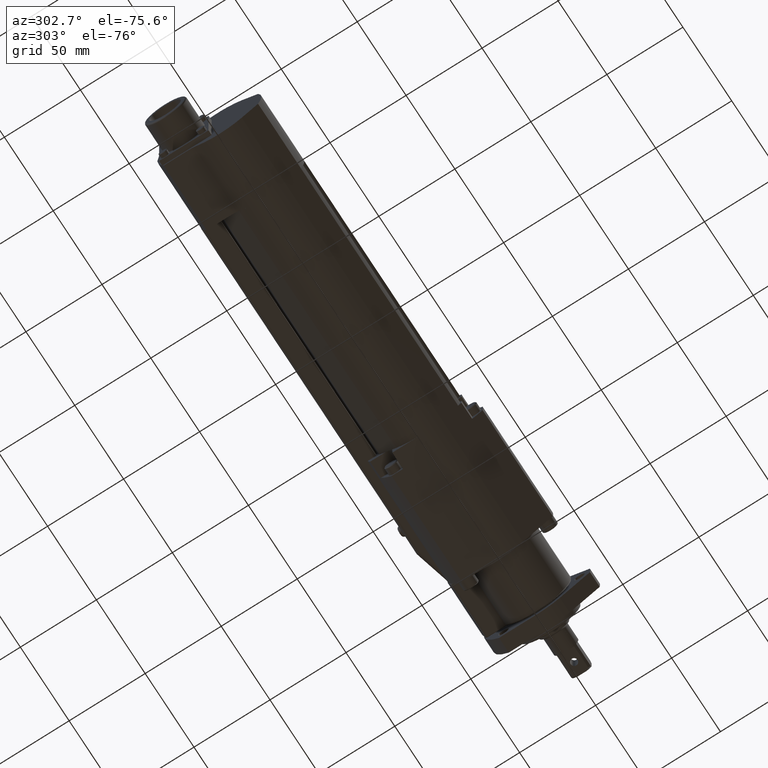
[diagram: clean part render]
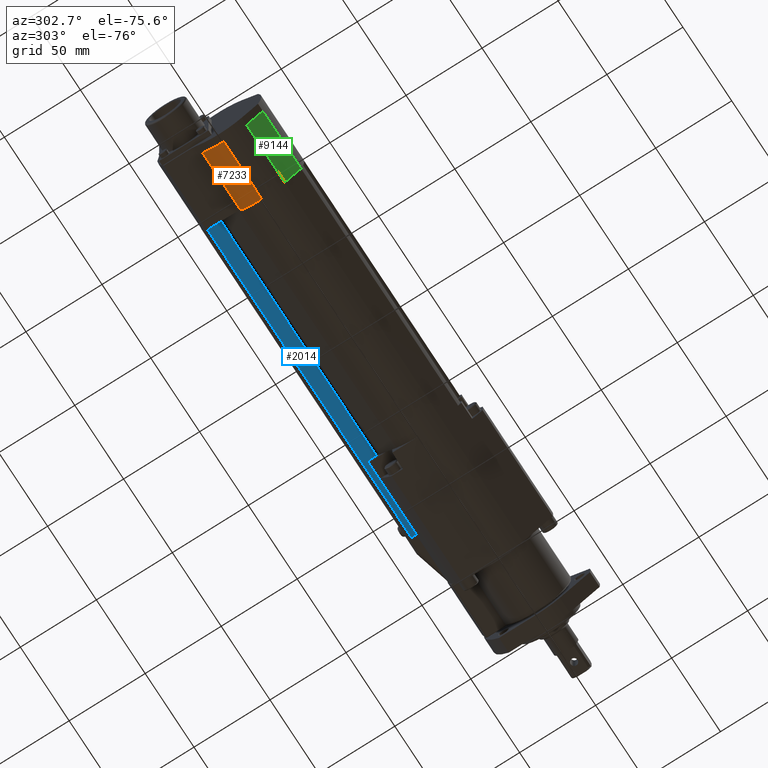
[diagram: same view with three faces highlighted in distinct colors, each labeled with its STEP entity id]
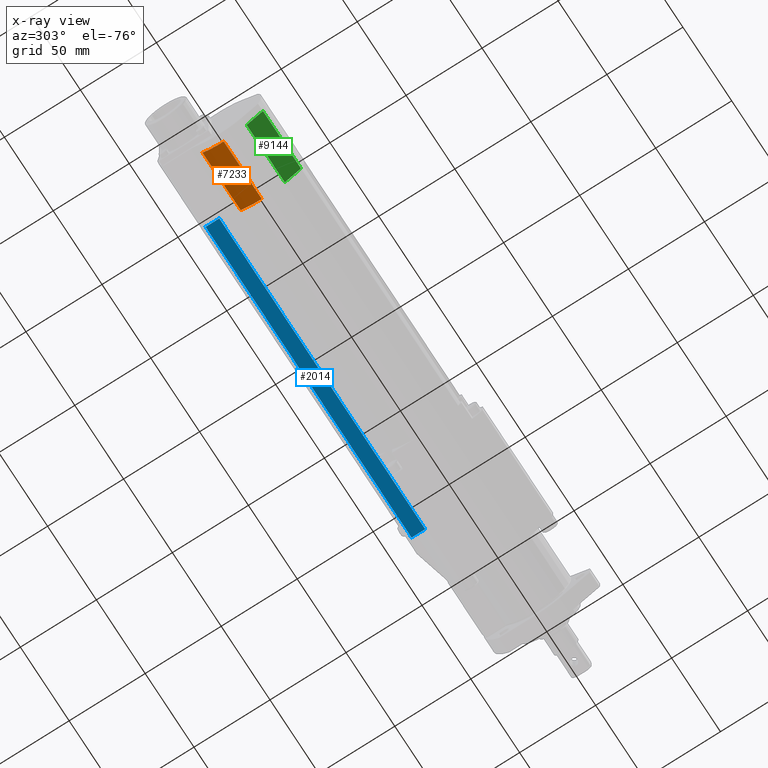
[diagram: x-ray of the same camera — body ghosted, the three highlighted faces saturated]
A machine part, auxiliary view with three faces highlighted in distinct colors.
The next image is the same camera in x-ray (body ghosted, the three faces saturated) — at least one of them is partly hidden behind the body in this view.
Their STEP definitions:

[orange] entity #7233 — the highlighted cylindrical surface (partial cylindrical patch) has radius 24.5 mm, axis along (1, -0, -0).
#354 = CARTESIAN_POINT ( 'NONE',  ( -331.0000000000000000, 13.95534960860682200, -20.13698630136986300 ) ) ;
#899 = EDGE_CURVE ( 'NONE', #1862, #3850, #1160, .T. ) ;
#931 = CIRCLE ( 'NONE', #4752, 24.50000000000000000 ) ;
#961 = EDGE_LOOP ( 'NONE', ( #5547, #7835, #9008, #7910 ) ) ;
#1142 = CARTESIAN_POINT ( 'NONE',  ( -331.0000000000000000, 0.0000000000000000000, 0.0000000000000000000 ) ) ;
#1160 = LINE ( 'NONE', #5411, #2376 ) ;
#1361 = LINE ( 'NONE', #354, #3248 ) ;
#1818 = CYLINDRICAL_SURFACE ( 'NONE', #7460, 24.50000000000000000 ) ;
#1862 = VERTEX_POINT ( 'NONE', #8710 ) ;
#1865 = DIRECTION ( 'NONE',  ( 0.0000000000000000000, 0.0000000000000000000, 1.000000000000000000 ) ) ;
#2308 = DIRECTION ( 'NONE',  ( 1.000000000000000000, -0.0000000000000000000, -0.0000000000000000000 ) ) ;
#2376 = VECTOR ( 'NONE', #7579, 1000.000000000000000 ) ;
#3021 = CARTESIAN_POINT ( 'NONE',  ( -331.0000000000000000, 0.0000000000000000000, 0.0000000000000000000 ) ) ;
#3248 = VECTOR ( 'NONE', #8946, 1000.000000000000000 ) ;
#3687 = CARTESIAN_POINT ( 'NONE',  ( -292.0000000000000600, 0.0000000000000000000, 0.0000000000000000000 ) ) ;
#3850 = VERTEX_POINT ( 'NONE', #9018 ) ;
#4412 = DIRECTION ( 'NONE',  ( 0.0000000000000000000, 0.0000000000000000000, 1.000000000000000000 ) ) ;
#4457 = CARTESIAN_POINT ( 'NONE',  ( -331.0000000000000000, 13.95534960860682200, -20.13698630136986300 ) ) ;
#4752 = AXIS2_PLACEMENT_3D ( 'NONE', #3687, #8730, #4412 ) ;
#5039 = AXIS2_PLACEMENT_3D ( 'NONE', #1142, #6161, #1865 ) ;
#5411 = CARTESIAN_POINT ( 'NONE',  ( -331.0000000000000000, 0.0000000000000000000, -24.50000000000000000 ) ) ;
#5547 = ORIENTED_EDGE ( 'NONE', *, *, #899, .F. ) ;
#5853 = FACE_OUTER_BOUND ( 'NONE', #961, .T. ) ;
#6161 = DIRECTION ( 'NONE',  ( -1.000000000000000000, 0.0000000000000000000, 0.0000000000000000000 ) ) ;
#6312 = CIRCLE ( 'NONE', #5039, 24.50000000000000000 ) ;
#6538 = VERTEX_POINT ( 'NONE', #4457 ) ;
#6678 = VERTEX_POINT ( 'NONE', #6950 ) ;
#6945 = EDGE_CURVE ( 'NONE', #6678, #3850, #931, .T. ) ;
#6950 = CARTESIAN_POINT ( 'NONE',  ( -292.0000000000000600, 13.95534960860682200, -20.13698630136986300 ) ) ;
#7167 = EDGE_CURVE ( 'NONE', #6538, #1862, #6312, .T. ) ;
#7233 = ADVANCED_FACE ( 'NONE', ( #5853 ), #1818, .T. ) ;
#7460 = AXIS2_PLACEMENT_3D ( 'NONE', #3021, #2308, #8057 ) ;
#7579 = DIRECTION ( 'NONE',  ( 1.000000000000000000, -0.0000000000000000000, -0.0000000000000000000 ) ) ;
#7780 = EDGE_CURVE ( 'NONE', #6538, #6678, #1361, .T. ) ;
#7835 = ORIENTED_EDGE ( 'NONE', *, *, #7167, .F. ) ;
#7910 = ORIENTED_EDGE ( 'NONE', *, *, #6945, .T. ) ;
#8057 = DIRECTION ( 'NONE',  ( 0.0000000000000000000, 0.0000000000000000000, -1.000000000000000000 ) ) ;
#8710 = CARTESIAN_POINT ( 'NONE',  ( -331.0000000000000000, 0.0000000000000000000, -24.50000000000000000 ) ) ;
#8730 = DIRECTION ( 'NONE',  ( -1.000000000000000000, 0.0000000000000000000, 0.0000000000000000000 ) ) ;
#8946 = DIRECTION ( 'NONE',  ( 1.000000000000000000, -0.0000000000000000000, -0.0000000000000000000 ) ) ;
#9008 = ORIENTED_EDGE ( 'NONE', *, *, #7780, .T. ) ;
#9018 = CARTESIAN_POINT ( 'NONE',  ( -292.0000000000000600, 0.0000000000000000000, -24.50000000000000000 ) ) ;

[blue] entity #2014 — the highlighted planar face has unit normal (0, 0, 1).
#84 = AXIS2_PLACEMENT_3D ( 'NONE', #8895, #6755, #2444 ) ;
#263 = LINE ( 'NONE', #7702, #1492 ) ;
#529 = ORIENTED_EDGE ( 'NONE', *, *, #1715, .F. ) ;
#582 = ORIENTED_EDGE ( 'NONE', *, *, #7362, .T. ) ;
#995 = EDGE_CURVE ( 'NONE', #8562, #2224, #263, .T. ) ;
#1298 = VERTEX_POINT ( 'NONE', #1770 ) ;
#1492 = VECTOR ( 'NONE', #4105, 1000.000000000000000 ) ;
#1699 = CARTESIAN_POINT ( 'NONE',  ( -292.0000000000000600, 37.00000000000024900, -9.000000000000000000 ) ) ;
#1715 = EDGE_CURVE ( 'NONE', #3745, #8562, #7294, .T. ) ;
#1745 = PLANE ( 'NONE',  #84 ) ;
#1770 = CARTESIAN_POINT ( 'NONE',  ( -81.00000000000000000, 37.00000000000000700, -9.000000000000000000 ) ) ;
#1787 = CARTESIAN_POINT ( 'NONE',  ( -292.0000000000000600, 37.00000000000027700, -9.000000000000000000 ) ) ;
#2014 = ADVANCED_FACE ( 'NONE', ( #6516 ), #1745, .F. ) ;
#2116 = CARTESIAN_POINT ( 'NONE',  ( -81.00000000000000000, 37.00000000000000700, -9.000000000000000000 ) ) ;
#2224 = VERTEX_POINT ( 'NONE', #5647 ) ;
#2303 = EDGE_CURVE ( 'NONE', #1298, #2224, #3007, .T. ) ;
#2444 = DIRECTION ( 'NONE',  ( 1.000000000000000000, 0.0000000000000000000, -0.0000000000000000000 ) ) ;
#2781 = VECTOR ( 'NONE', #6427, 1000.000000000000000 ) ;
#3007 = LINE ( 'NONE', #2116, #2781 ) ;
#3028 = LINE ( 'NONE', #3157, #6633 ) ;
#3157 = CARTESIAN_POINT ( 'NONE',  ( -313.6333076527839700, 37.00000000000027700, -9.000000000000000000 ) ) ;
#3745 = VERTEX_POINT ( 'NONE', #1699 ) ;
#4105 = DIRECTION ( 'NONE',  ( 1.000000000000000000, -1.156482317317871500E-015, -0.0000000000000000000 ) ) ;
#4107 = EDGE_LOOP ( 'NONE', ( #529, #582, #4767, #4901 ) ) ;
#4662 = DIRECTION ( 'NONE',  ( 0.0000000000000000000, -1.000000000000000000, 0.0000000000000000000 ) ) ;
#4767 = ORIENTED_EDGE ( 'NONE', *, *, #2303, .T. ) ;
#4901 = ORIENTED_EDGE ( 'NONE', *, *, #995, .F. ) ;
#5647 = CARTESIAN_POINT ( 'NONE',  ( -81.00000000000001400, 28.00000000000000000, -9.000000000000000000 ) ) ;
#5934 = CARTESIAN_POINT ( 'NONE',  ( -292.0000000000000600, 28.00000000000024900, -9.000000000000000000 ) ) ;
#6427 = DIRECTION ( 'NONE',  ( -1.541976423090494400E-015, -1.000000000000000000, 0.0000000000000000000 ) ) ;
#6516 = FACE_OUTER_BOUND ( 'NONE', #4107, .T. ) ;
#6633 = VECTOR ( 'NONE', #8184, 1000.000000000000000 ) ;
#6755 = DIRECTION ( 'NONE',  ( 0.0000000000000000000, 0.0000000000000000000, 1.000000000000000000 ) ) ;
#7294 = LINE ( 'NONE', #1787, #9001 ) ;
#7362 = EDGE_CURVE ( 'NONE', #3745, #1298, #3028, .T. ) ;
#7702 = CARTESIAN_POINT ( 'NONE',  ( -313.6333076527839700, 28.00000000000027000, -9.000000000000000000 ) ) ;
#8184 = DIRECTION ( 'NONE',  ( 1.000000000000000000, -1.156482317317871500E-015, -0.0000000000000000000 ) ) ;
#8562 = VERTEX_POINT ( 'NONE', #5934 ) ;
#8895 = CARTESIAN_POINT ( 'NONE',  ( -313.6333076527839700, 37.00000000000027700, -9.000000000000000000 ) ) ;
#9001 = VECTOR ( 'NONE', #4662, 1000.000000000000000 ) ;

[green] entity #9144 — the highlighted planar face has unit normal (0, 0.6157, 0.788).
#299 = FACE_OUTER_BOUND ( 'NONE', #5573, .T. ) ;
#474 = LINE ( 'NONE', #5107, #5729 ) ;
#527 = CARTESIAN_POINT ( 'NONE',  ( -292.0000000000000600, -25.76553998420773400, -10.96070022043266000 ) ) ;
#774 = DIRECTION ( 'NONE',  ( 1.000000000000000000, -0.0000000000000000000, -0.0000000000000000000 ) ) ;
#789 = EDGE_CURVE ( 'NONE', #1364, #7265, #8785, .T. ) ;
#896 = CARTESIAN_POINT ( 'NONE',  ( -292.0000000000000600, -25.76553998420773800, -10.96070022043265300 ) ) ;
#1364 = VERTEX_POINT ( 'NONE', #7594 ) ;
#1396 = ORIENTED_EDGE ( 'NONE', *, *, #789, .T. ) ;
#1434 = CARTESIAN_POINT ( 'NONE',  ( -331.0000000000000000, -25.76553998420773800, -10.96070022043265300 ) ) ;
#1727 = CARTESIAN_POINT ( 'NONE',  ( -331.0000000000000000, -15.08370614547852600, -19.30626346336476800 ) ) ;
#1866 = EDGE_CURVE ( 'NONE', #1364, #4773, #474, .T. ) ;
#2121 = VERTEX_POINT ( 'NONE', #527 ) ;
#2230 = DIRECTION ( 'NONE',  ( -0.0000000000000000000, -0.7880107536067252300, 0.6156614753256540700 ) ) ;
#2334 = LINE ( 'NONE', #896, #5929 ) ;
#2587 = ORIENTED_EDGE ( 'NONE', *, *, #5623, .T. ) ;
#2850 = DIRECTION ( 'NONE',  ( 0.0000000000000000000, 0.6156614753256540700, 0.7880107536067252300 ) ) ;
#3041 = VECTOR ( 'NONE', #8912, 1000.000000000000000 ) ;
#3057 = VECTOR ( 'NONE', #774, 1000.000000000000000 ) ;
#3168 = EDGE_CURVE ( 'NONE', #4773, #2121, #8796, .T. ) ;
#3592 = AXIS2_PLACEMENT_3D ( 'NONE', #1434, #2850, #7882 ) ;
#3753 = ORIENTED_EDGE ( 'NONE', *, *, #1866, .F. ) ;
#4773 = VERTEX_POINT ( 'NONE', #6116 ) ;
#5107 = CARTESIAN_POINT ( 'NONE',  ( -331.0000000000000000, -25.76553998420773800, -10.96070022043265300 ) ) ;
#5573 = EDGE_LOOP ( 'NONE', ( #2587, #7775, #3753, #1396 ) ) ;
#5623 = EDGE_CURVE ( 'NONE', #7265, #2121, #2334, .T. ) ;
#5729 = VECTOR ( 'NONE', #2230, 1000.000000000000000 ) ;
#5913 = DIRECTION ( 'NONE',  ( -0.0000000000000000000, -0.7880107536067252300, 0.6156614753256540700 ) ) ;
#5929 = VECTOR ( 'NONE', #5913, 1000.000000000000000 ) ;
#6116 = CARTESIAN_POINT ( 'NONE',  ( -331.0000000000000000, -25.76553998420773400, -10.96070022043266000 ) ) ;
#7265 = VERTEX_POINT ( 'NONE', #8820 ) ;
#7594 = CARTESIAN_POINT ( 'NONE',  ( -331.0000000000000000, -15.08370614547852600, -19.30626346336476800 ) ) ;
#7775 = ORIENTED_EDGE ( 'NONE', *, *, #3168, .F. ) ;
#7844 = PLANE ( 'NONE',  #3592 ) ;
#7882 = DIRECTION ( 'NONE',  ( 0.0000000000000000000, -0.7880107536067252300, 0.6156614753256540700 ) ) ;
#8651 = CARTESIAN_POINT ( 'NONE',  ( -331.0000000000000000, -25.76553998420773400, -10.96070022043266000 ) ) ;
#8785 = LINE ( 'NONE', #1727, #3041 ) ;
#8796 = LINE ( 'NONE', #8651, #3057 ) ;
#8820 = CARTESIAN_POINT ( 'NONE',  ( -292.0000000000000600, -15.08370614547852600, -19.30626346336476800 ) ) ;
#8912 = DIRECTION ( 'NONE',  ( 1.000000000000000000, -0.0000000000000000000, -0.0000000000000000000 ) ) ;
#9144 = ADVANCED_FACE ( 'NONE', ( #299 ), #7844, .F. ) ;